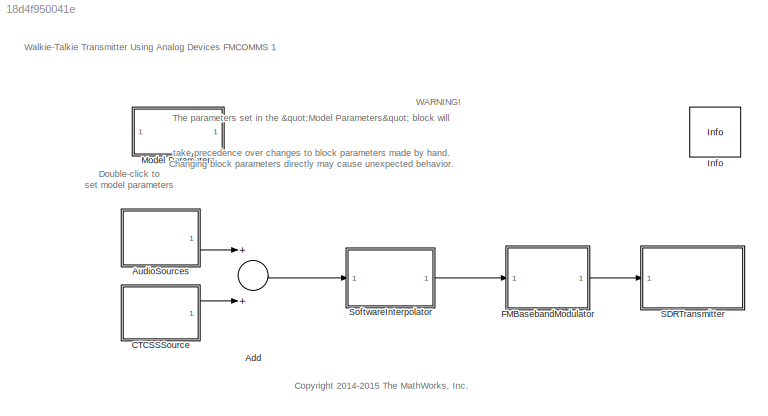
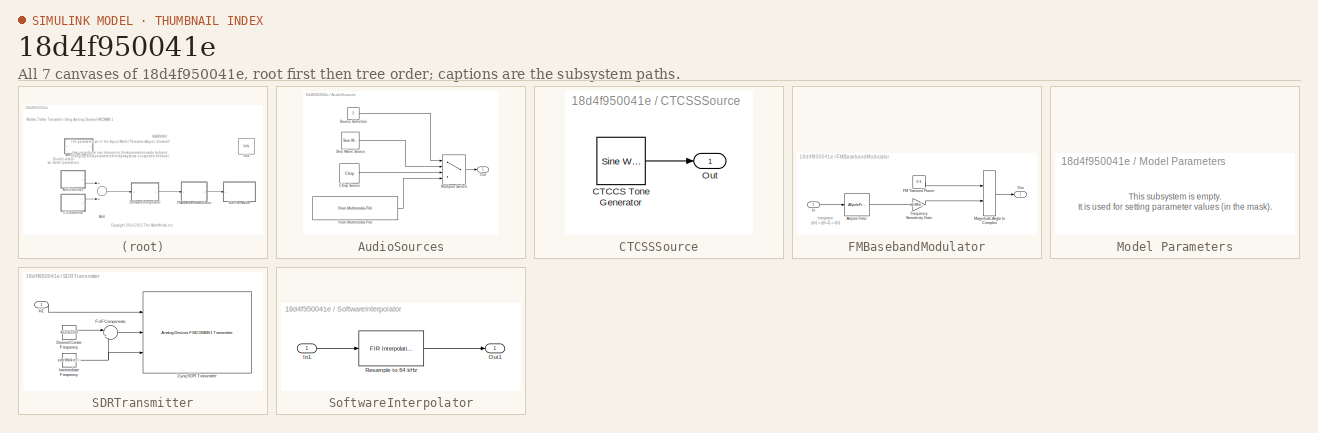
[diagram: thumbnail index - all 7 canvases of the model, root first then tree order]
MODEL slx_18d4f950041e
KIND model
CONFIG AbsTol = auto
CONFIG FixedStep = auto
CONFIG InitFcn = sdrzWalkieTalkieTxParams = sdrzWalkieTalkieTxHelper_SimParams();\nsdrzWalkieTalkieTxHelper_ModelParamsMask('applyParametersToModel');
CONFIG MaxStep = auto
CONFIG MinStep = auto
CONFIG PostLoadFcn = sdrzWalkieTalkieTxParams = sdrzWalkieTalkieTxHelper_SimParams();\nsdrzWalkieTalkieTxHelper_ModelParamsMask('applyParametersToModel');
CONFIG RelTol = 1e-3
CONFIG SampleTimeConstraint = Unconstrained
CONFIG Solver = ode45
CONFIG SolverMode = Auto
CONFIG SolverName = ode45
CONFIG StartTime = 0.0
CONFIG StopTime = inf
BLOCK [Sum] Add
  InputSameDT = off
  OutDataTypeStr = Inherit: Inherit via internal rule
  Ports = [2, 1]
  SaturateOnIntegerOverflow = off
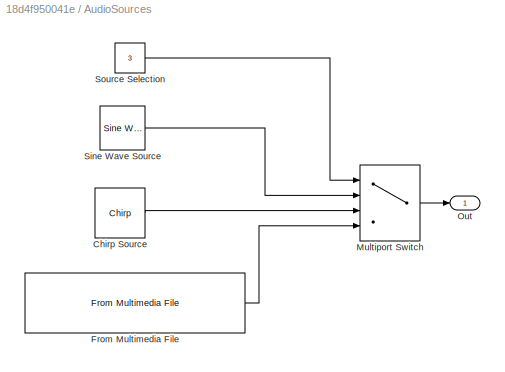
BLOCK [SubSystem] AudioSources
  Ports = [0, 1]
  RequestExecContextInheritance = off
  Variant = off
BLOCK [Reference] AudioSources/Chirp Source  REF=dspsrcs4/Chirp
  Ports = [0, 1]
  SourceBlock = dspsrcs4/Chirp
  SourceType = Chirp
BLOCK [Reference] AudioSources/From Multimedia File  REF=dspvision/From Multimedia File
  Ports = [0, 1]
  SourceBlock = dspvision/From Multimedia File
  SourceType = From Multimedia File
BLOCK [MultiPortSwitch] AudioSources/Multiport Switch
  InputSameDT = off
  Ports = [4, 1]
  SaturateOnIntegerOverflow = off
BLOCK [Outport] AudioSources/Out
  IconDisplay = Port number
BLOCK [Reference] AudioSources/Sine Wave Source  REF=dspsrcs4/Sine Wave
  Ports = [0, 1]
  SourceBlock = dspsrcs4/Sine Wave
  SourceType = Sine Wave
BLOCK [Constant] AudioSources/Source Selection
  Tag = SourceSelection
  Value = 3
BLOCK [SubSystem] CTCSSSource
  Ports = [0, 1]
  RequestExecContextInheritance = off
  Variant = off
BLOCK [Reference] CTCSSSource/CTCCS Tone Generator  REF=dspsrcs4/Sine Wave
  Ports = [0, 1]
  SourceBlock = dspsrcs4/Sine Wave
  SourceType = Sine Wave
BLOCK [Outport] CTCSSSource/Out
  IconDisplay = Port number
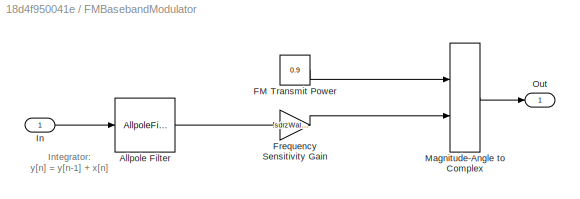
BLOCK [SubSystem] FMBasebandModulator
  Ports = [1, 1]
  RequestExecContextInheritance = off
  Variant = off
BLOCK [AllpoleFilter] FMBasebandModulator/Allpole Filter
  AccumDataTypeStr = Inherit: Same as product output
  Coefficients = [1 -1]
  FilterStructure = Direct form transposed
  InputPortMap = u0
  OutDataTypeStr = Inherit: Same as accumulator
  OutputPortMap = o0
  Ports = [1, 1]
  ProductDataTypeStr = Inherit: Same as input
BLOCK [Constant] FMBasebandModulator/FM Transmit Power
  OutDataTypeStr = single
  Value = 0.9
BLOCK [Gain] FMBasebandModulator/Frequency Sensitivity Gain
  Gain = sdrzWalkieTalkieTxParams.frequencySensitivityGain
  OutDataTypeStr = Inherit: Inherit via internal rule
  ParamDataTypeStr = Inherit: Inherit via internal rule
  SaturateOnIntegerOverflow = off
BLOCK [Inport] FMBasebandModulator/In
  IconDisplay = Port number
BLOCK [MagnitudeAngleToComplex] FMBasebandModulator/Magnitude-Angle to Complex
  Ports = [2, 1]
BLOCK [Outport] FMBasebandModulator/Out
  IconDisplay = Port number
BLOCK [Reference] Info  REF=sdrzblksprivate/Info
  Ports = []
  SourceBlock = sdrzblksprivate/Info
  SourceType = Info
BLOCK [SubSystem] Model Parameters
  Ports = []
  RequestExecContextInheritance = off
  SystemSampleTime = sdrzWalkieTalkieTxParams.audioSampleRate
  TreatAsAtomicUnit = on
  Variant = off
BLOCK [SubSystem] SDRTransmitter
  Ports = [1]
  RequestExecContextInheritance = off
  Variant = off
BLOCK [Constant] SDRTransmitter/Desired Center Frequency
  Value = 462562500
BLOCK [Sum] SDRTransmitter/FcIFCompensate
  IconShape = round
  InputSameDT = off
  Inputs = |+-
  OutDataTypeStr = Inherit: Inherit via internal rule
  Ports = [2, 1]
  SaturateOnIntegerOverflow = off
BLOCK [Inport] SDRTransmitter/In1
  IconDisplay = Port number
BLOCK [Constant] SDRTransmitter/Intermediate Frequency
  Value = sdrzWalkieTalkieTxParams.radioIntermediateFrequency
BLOCK [Reference] SDRTransmitter/Zynq SDR Transmitter  REF=sdrzlib/Analog Devices
FMCOMMS1 Transmitter
  Ports = [3]
  SourceBlock = sdrzlib/Analog Devices\nFMCOMMS1 Transmitter
  SourceLibraryInfo = This block requires Communications System Toolbox Support Package for Xilinx FPGA-Based Radio. <a href="http://www.mathworks.com/hardware-support-packages">More information</a>
  SourceType = Zynq-Based Analog Devices FMCOMMS1 Transmitter
BLOCK [SubSystem] SoftwareInterpolator
  Ports = [1, 1]
  RequestExecContextInheritance = off
  Variant = off
BLOCK [Inport] SoftwareInterpolator/In1
  IconDisplay = Port number
BLOCK [Outport] SoftwareInterpolator/Out1
  IconDisplay = Port number
BLOCK [Reference] SoftwareInterpolator/Resample to 64 kHz  REF=dspmlti4/FIR
Interpolation
  Ports = [1, 1]
  SourceBlock = dspmlti4/FIR\nInterpolation
  SourceType = FIR Interpolation
  UserDataPersistent = on
ANNOTATION (root): The parameters set in the "Model Parameters" block will take precedence over changes to block parameters made by hand. Changing block parameters directly may cause unexpected behavior.
ANNOTATION (root): WARNING!
ANNOTATION (root): <copyright redacted>
ANNOTATION (root): Double-click to set model parameters
ANNOTATION (root): Walkie-Talkie Transmitter Using Analog Devices FMCOMMS 1
ANNOTATION FMBasebandModulator: Integrator: y[n] = y[n-1] + x[n]
ANNOTATION Model Parameters: This subsystem is empty. It is used for setting parameter values (in the mask).
LINE Add:1 -> SoftwareInterpolator:1
LINE AudioSources/Chirp Source:1 -> AudioSources/Multiport Switch:3
LINE AudioSources/From Multimedia File:1 -> AudioSources/Multiport Switch:4
LINE AudioSources/Multiport Switch:1 -> AudioSources/Out:1
LINE AudioSources/Sine Wave Source:1 -> AudioSources/Multiport Switch:2
LINE AudioSources/Source Selection:1 -> AudioSources/Multiport Switch:1
LINE AudioSources:1 -> Add:1
LINE CTCSSSource/CTCCS Tone Generator:1 -> CTCSSSource/Out:1
LINE CTCSSSource:1 -> Add:2
LINE FMBasebandModulator/Allpole Filter:1 -> FMBasebandModulator/Frequency Sensitivity Gain:1
LINE FMBasebandModulator/FM Transmit Power:1 -> FMBasebandModulator/Magnitude-Angle to Complex:1
LINE FMBasebandModulator/Frequency Sensitivity Gain:1 -> FMBasebandModulator/Magnitude-Angle to Complex:2
LINE FMBasebandModulator/In:1 -> FMBasebandModulator/Allpole Filter:1
LINE FMBasebandModulator/Magnitude-Angle to Complex:1 -> FMBasebandModulator/Out:1
LINE FMBasebandModulator:1 -> SDRTransmitter:1
LINE SDRTransmitter/Desired Center Frequency:1 -> SDRTransmitter/FcIFCompensate:1
LINE SDRTransmitter/FcIFCompensate:1 -> SDRTransmitter/Zynq SDR Transmitter:2
LINE SDRTransmitter/In1:1 -> SDRTransmitter/Zynq SDR Transmitter:1
NET SDRTransmitter/Intermediate Frequency:1 -> SDRTransmitter/FcIFCompensate:2, SDRTransmitter/Zynq SDR Transmitter:3
LINE SoftwareInterpolator/In1:1 -> SoftwareInterpolator/Resample to 64 kHz:1
LINE SoftwareInterpolator/Resample to 64 kHz:1 -> SoftwareInterpolator/Out1:1
LINE SoftwareInterpolator:1 -> FMBasebandModulator:1
note: NET lines group one-source signal fan-out (src -> all destinations, sorted); 1:1 wires keep LINE
